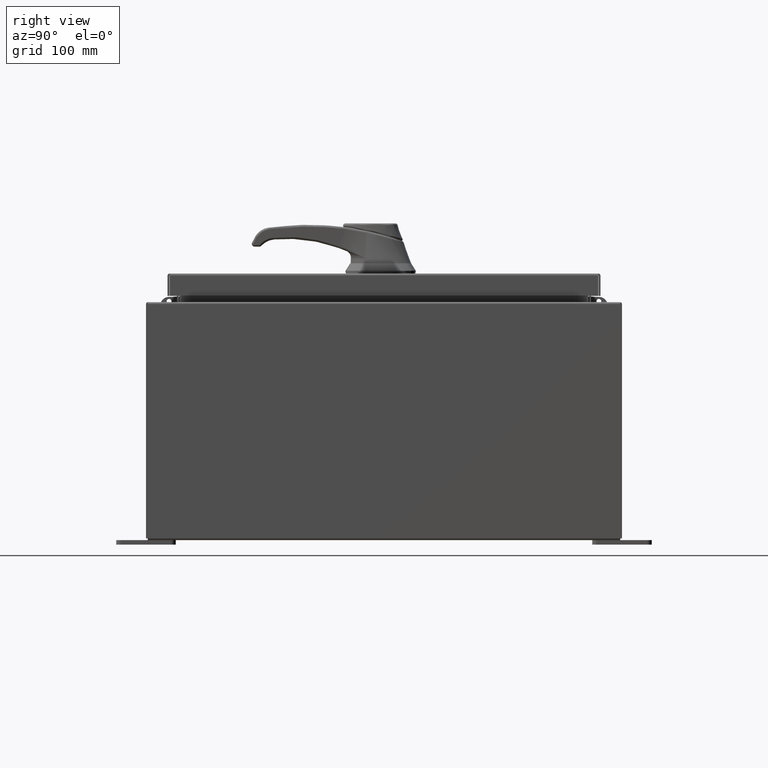
[diagram: clean part render]
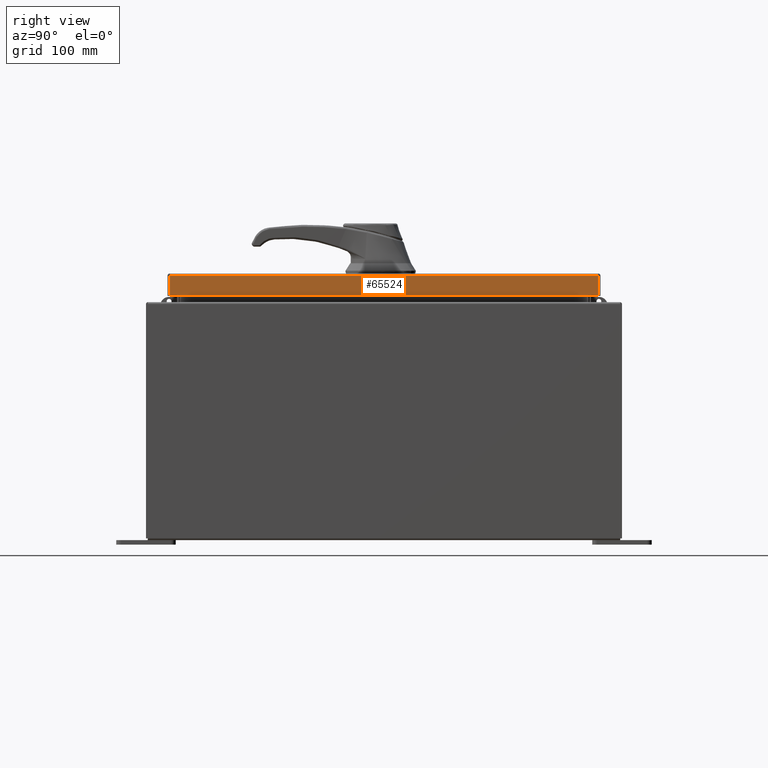
[diagram: same view with one face highlighted and labeled with its STEP entity id]
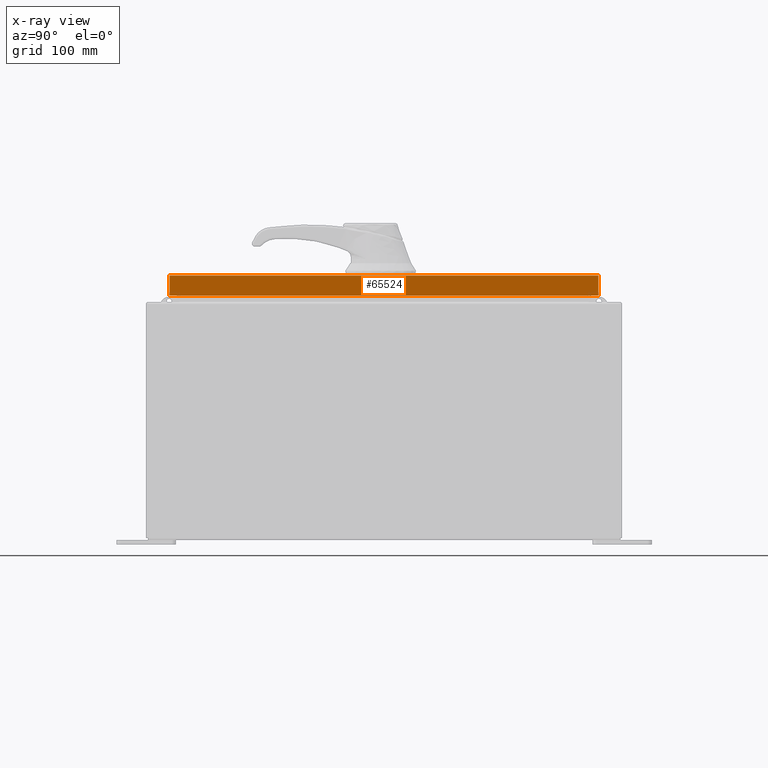
[diagram: x-ray of the same camera — body ghosted, the highlighted face saturated]
A machine part, right view. The second image highlights one B-rep face of the part: STEP entity #65524.
The next image is the same camera in x-ray: the body ghosted, the highlighted face saturated — about 0% of this face is hidden behind the body in this view.
In plain terms, the highlighted planar face has unit normal (1, 0, 0).
Its self-contained STEP definition (entity closure, byte-faithful):
#608 = VECTOR ( 'NONE', #91959, 39.37007874015748100 ) ;
#1908 = CARTESIAN_POINT ( 'NONE',  ( 7.078000000000005600, 9.005157864376276000, -0.9376999999999997600 ) ) ;
#4748 = CARTESIAN_POINT ( 'NONE',  ( 7.078000000000002100, 9.005157864376268900, 9.003019726912204800E-014 ) ) ;
#5097 = DIRECTION ( 'NONE',  ( 0.0000000000000000000, -1.000000000000000000, 0.0000000000000000000 ) ) ;
#9325 = VERTEX_POINT ( 'NONE', #97579 ) ;
#17091 = ORIENTED_EDGE ( 'NONE', *, *, #26437, .T. ) ;
#17620 = CARTESIAN_POINT ( 'NONE',  ( 7.078000000000002100, 0.0000000000000000000, 2.714751599550960100E-014 ) ) ;
#17973 = PLANE ( 'NONE',  #81065 ) ;
#20178 = VECTOR ( 'NONE', #5097, 39.37007874015748100 ) ;
#21956 = EDGE_CURVE ( 'NONE', #9325, #33815, #85100, .T. ) ;
#23192 = CARTESIAN_POINT ( 'NONE',  ( 7.078000000000005600, -9.093999999999999400, -0.9376999999999997600 ) ) ;
#23564 = DIRECTION ( 'NONE',  ( 0.0000000000000000000, -1.000000000000000000, 0.0000000000000000000 ) ) ;
#24671 = EDGE_CURVE ( 'NONE', #89875, #33815, #25472, .T. ) ;
#24868 = ORIENTED_EDGE ( 'NONE', *, *, #54645, .F. ) ;
#25472 = LINE ( 'NONE', #55613, #20178 ) ;
#26363 = VECTOR ( 'NONE', #23564, 39.37007874015748100 ) ;
#26426 = DIRECTION ( 'NONE',  ( 3.798629886902798700E-015, 0.0000000000000000000, -1.000000000000000000 ) ) ;
#26437 = EDGE_CURVE ( 'NONE', #78067, #89875, #87221, .T. ) ;
#26624 = FACE_OUTER_BOUND ( 'NONE', #68480, .T. ) ;
#28854 = CARTESIAN_POINT ( 'NONE',  ( 7.078000000000002100, 9.005157864376270600, -0.08769999999999997200 ) ) ;
#33036 = CARTESIAN_POINT ( 'NONE',  ( 7.078000000000002100, -9.005157864376267100, -0.07469999999999972500 ) ) ;
#33815 = VERTEX_POINT ( 'NONE', #84623 ) ;
#54645 = EDGE_CURVE ( 'NONE', #78067, #9325, #73824, .T. ) ;
#55257 = DIRECTION ( 'NONE',  ( -3.798629886902798700E-015, -6.982962677686265900E-015, 1.000000000000000000 ) ) ;
#55613 = CARTESIAN_POINT ( 'NONE',  ( 7.078000000000002100, 0.0000000000000000000, -0.08769999999999997200 ) ) ;
#65524 = ADVANCED_FACE ( 'NONE', ( #26624 ), #17973, .T. ) ;
#68480 = EDGE_LOOP ( 'NONE', ( #94275, #24868, #17091, #75846 ) ) ;
#73824 = LINE ( 'NONE', #23192, #26363 ) ;
#75846 = ORIENTED_EDGE ( 'NONE', *, *, #24671, .T. ) ;
#76903 = DIRECTION ( 'NONE',  ( 1.000000000000000000, 0.0000000000000000000, 3.798629886902798700E-015 ) ) ;
#78067 = VERTEX_POINT ( 'NONE', #1908 ) ;
#81065 = AXIS2_PLACEMENT_3D ( 'NONE', #17620, #76903, #26426 ) ;
#84623 = CARTESIAN_POINT ( 'NONE',  ( 7.078000000000002100, -9.005157864376267100, -0.08769999999999997200 ) ) ;
#85100 = LINE ( 'NONE', #33036, #608 ) ;
#87221 = LINE ( 'NONE', #4748, #106957 ) ;
#89875 = VERTEX_POINT ( 'NONE', #28854 ) ;
#91959 = DIRECTION ( 'NONE',  ( -3.798629886902798700E-015, -6.982962677686265900E-015, 1.000000000000000000 ) ) ;
#94275 = ORIENTED_EDGE ( 'NONE', *, *, #21956, .F. ) ;
#97579 = CARTESIAN_POINT ( 'NONE',  ( 7.078000000000005600, -9.005157864376261800, -0.9376999999999997600 ) ) ;
#106957 = VECTOR ( 'NONE', #55257, 39.37007874015748100 ) ;